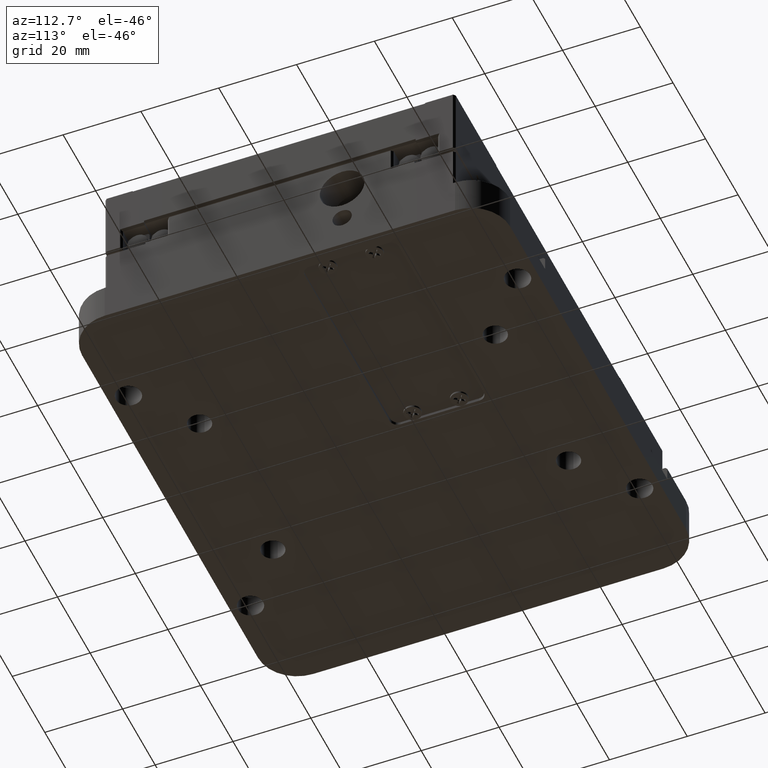
[diagram: clean part render]
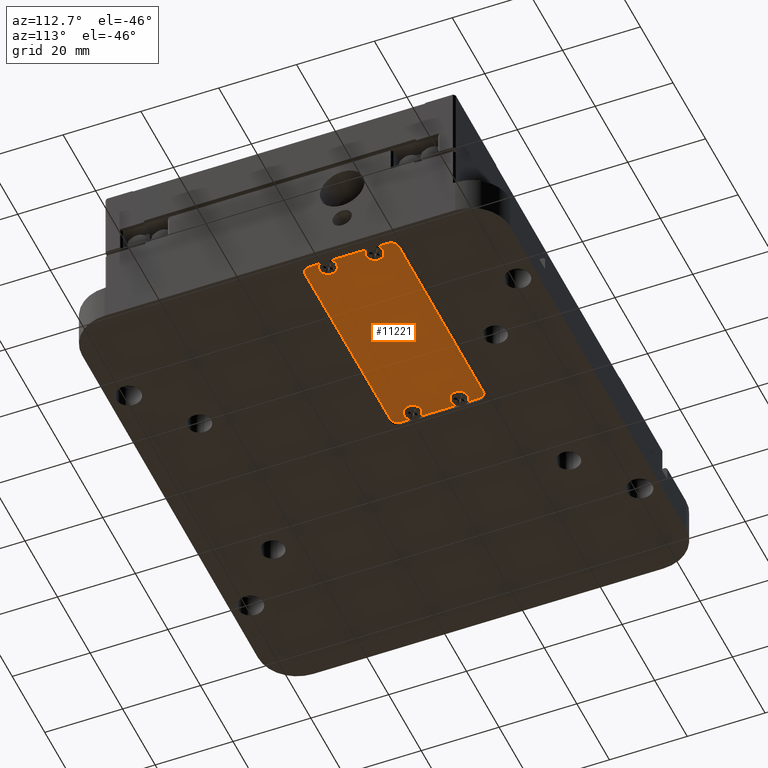
[diagram: same view with one face highlighted and labeled with its STEP entity id]
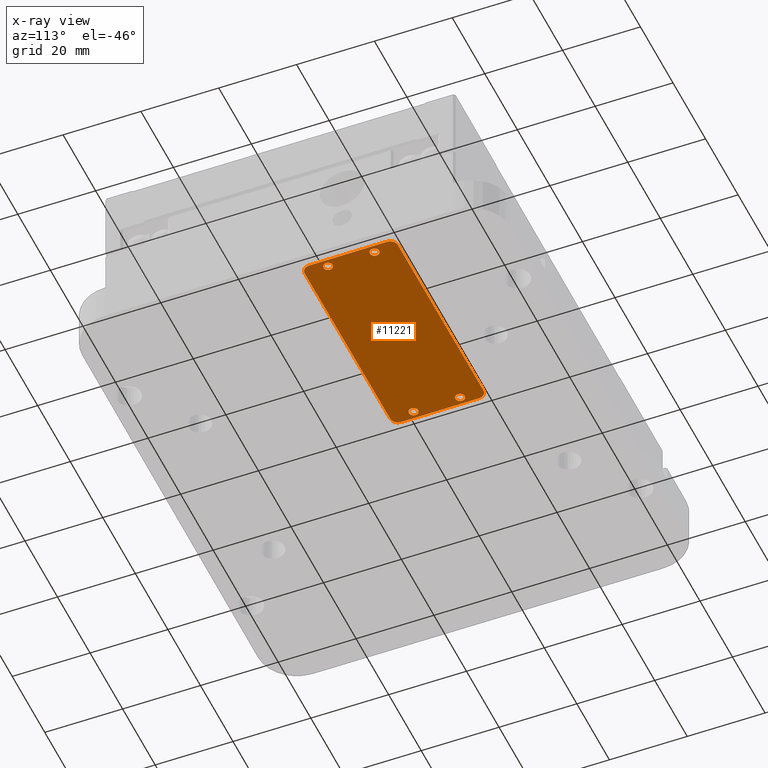
[diagram: x-ray of the same camera — body ghosted, the highlighted face saturated]
A machine part, auxiliary view. The second image highlights one B-rep face of the part: STEP entity #11221.
The next image is the same camera in x-ray: the body ghosted, the highlighted face saturated — about 0% of this face is hidden behind the body in this view.
In plain terms, the highlighted planar face has unit normal (-0, 0, 1).
Its self-contained STEP definition (entity closure, byte-faithful):
#1036 = CARTESIAN_POINT ( 'NONE',  ( 100.9756805584887189, -3.726752283022190415, 70.30000005662441254 ) ) ;
#1448 = ORIENTED_EDGE ( 'NONE', *, *, #16701, .F. ) ;
#2327 = CARTESIAN_POINT ( 'NONE',  ( 153.0693705983418624, 18.05047109443593101, 70.30000005662441254 ) ) ;
#3369 = VERTEX_POINT ( 'NONE', #7717 ) ;
#4797 = ORIENTED_EDGE ( 'NONE', *, *, #71366, .F. ) ;
#5424 = CIRCLE ( 'NONE', #55949, 2.000000000000003997 ) ;
#5624 = FACE_OUTER_BOUND ( 'NONE', #43337, .T. ) ;
#6072 = FACE_BOUND ( 'NONE', #46605, .T. ) ;
#6077 = CARTESIAN_POINT ( 'NONE',  ( 155.0607916969161977, 16.04192883494698307, 70.30000005662441254 ) ) ;
#6260 = ORIENTED_EDGE ( 'NONE', *, *, #34905, .F. ) ;
#6369 = VERTEX_POINT ( 'NONE', #6077 ) ;
#6512 = CARTESIAN_POINT ( 'NONE',  ( 102.1927907268223095, 0.2680747267667119016, 70.30000005662441254 ) ) ;
#6826 = CARTESIAN_POINT ( 'NONE',  ( 153.0608100178845348, 16.05048941540428942, 70.30000005662441254 ) ) ;
#7717 = CARTESIAN_POINT ( 'NONE',  ( 99.06130468403014788, 16.28162508775155359, 70.30000005662441254 ) ) ;
#7725 = CARTESIAN_POINT ( 'NONE',  ( 153.0436888569699363, 12.05052605734100268, 70.30000005662441254 ) ) ;
#7923 = EDGE_CURVE ( 'NONE', #50842, #3369, #82482, .T. ) ;
#9352 = DIRECTION ( 'NONE',  ( -0.004280290228653059990, -0.9999908395158220165, -7.715931078334189329E-20 ) ) ;
#9675 = VECTOR ( 'NONE', #57938, 1000.000000000000000 ) ;
#9941 = AXIS2_PLACEMENT_3D ( 'NONE', #7725, #62847, #41640 ) ;
#11064 = DIRECTION ( 'NONE',  ( 0.9999908395158220165, -0.004280290228653059990, 2.081653871151223996E-17 ) ) ;
#11221 = ADVANCED_FACE ( 'NONE', ( #5624, #59845, #11962, #33196, #6072 ), #32743, .F. ) ;
#11383 = AXIS2_PLACEMENT_3D ( 'NONE', #23527, #56957, #58295 ) ;
#11803 = CIRCLE ( 'NONE', #19039, 1.199999999999993960 ) ;
#11962 = FACE_BOUND ( 'NONE', #33889, .T. ) ;
#12778 = CARTESIAN_POINT ( 'NONE',  ( 98.97569887945708444, -3.718191702564885848, 70.30000005662441254 ) ) ;
#13294 = EDGE_CURVE ( 'NONE', #48079, #48079, #11803, .T. ) ;
#13725 = VERTEX_POINT ( 'NONE', #70471 ) ;
#14297 = CIRCLE ( 'NONE', #9941, 1.199999999999980194 ) ;
#15436 = DIRECTION ( 'NONE',  ( -0.9999908395158220165, 0.004280290228653059990, -2.081653871151223996E-17 ) ) ;
#15956 = LINE ( 'NONE', #36745, #9675 ) ;
#16701 = EDGE_CURVE ( 'NONE', #18148, #18148, #76249, .T. ) ;
#17007 = DIRECTION ( 'NONE',  ( 2.081667828618272760E-17, -1.194222327456772485E-20, -1.000000000000000000 ) ) ;
#17603 = ORIENTED_EDGE ( 'NONE', *, *, #32467, .F. ) ;
#18148 = VERTEX_POINT ( 'NONE', #31259 ) ;
#18315 = VERTEX_POINT ( 'NONE', #86563 ) ;
#18331 = DIRECTION ( 'NONE',  ( 0.9999908395158221275, -0.004280290228652210843, 0.000000000000000000 ) ) ;
#19039 = AXIS2_PLACEMENT_3D ( 'NONE', #30577, #17007, #54445 ) ;
#23527 = CARTESIAN_POINT ( 'NONE',  ( 152.9752042133114855, -3.949327374912150468, 70.30000005662441254 ) ) ;
#24471 = CIRCLE ( 'NONE', #33162, 2.000000000000003997 ) ;
#25122 = DIRECTION ( 'NONE',  ( 2.081667828618272760E-17, -1.194222327456772485E-20, -1.000000000000000000 ) ) ;
#26237 = EDGE_CURVE ( 'NONE', #65422, #65422, #14297, .T. ) ;
#27470 = CARTESIAN_POINT ( 'NONE',  ( 152.9666436328541579, -5.949309053943792058, 70.30000005662441254 ) ) ;
#27634 = DIRECTION ( 'NONE',  ( -2.081667828618272760E-17, 1.194222327456772485E-20, 1.000000000000000000 ) ) ;
#28091 = ORIENTED_EDGE ( 'NONE', *, *, #88584, .F. ) ;
#28918 = CARTESIAN_POINT ( 'NONE',  ( 101.0698469435190816, 18.27304618632589239, 70.30000005662441254 ) ) ;
#28976 = VERTEX_POINT ( 'NONE', #12778 ) ;
#29045 = EDGE_CURVE ( 'NONE', #28976, #33956, #24471, .T. ) ;
#29447 = LINE ( 'NONE', #2327, #77494 ) ;
#30577 = CARTESIAN_POINT ( 'NONE',  ( 100.9928017194033316, 0.2732110750410954858, 70.30000005662441254 ) ) ;
#31259 = CARTESIAN_POINT ( 'NONE',  ( 102.2441542095661617, 12.26796480095657849, 70.30000005662441254 ) ) ;
#32467 = EDGE_CURVE ( 'NONE', #6369, #13725, #5424, .T. ) ;
#32743 = PLANE ( 'NONE',  #72988 ) ;
#32939 = EDGE_LOOP ( 'NONE', ( #55267 ) ) ;
#33162 = AXIS2_PLACEMENT_3D ( 'NONE', #1036, #63373, #34035 ) ;
#33196 = FACE_BOUND ( 'NONE', #32939, .T. ) ;
#33889 = EDGE_LOOP ( 'NONE', ( #39172 ) ) ;
#33956 = VERTEX_POINT ( 'NONE', #37820 ) ;
#34035 = DIRECTION ( 'NONE',  ( -0.9999908395158221275, 0.004280290228652252477, 0.000000000000000000 ) ) ;
#34405 = DIRECTION ( 'NONE',  ( -0.9999908395158221275, 0.004280290228652469317, 0.000000000000000000 ) ) ;
#34659 = CARTESIAN_POINT ( 'NONE',  ( 152.9923253742260840, 0.05063598315113715387, 70.30000005662441254 ) ) ;
#34905 = EDGE_CURVE ( 'NONE', #3369, #28976, #64046, .T. ) ;
#34960 = ORIENTED_EDGE ( 'NONE', *, *, #7923, .F. ) ;
#35351 = CARTESIAN_POINT ( 'NONE',  ( 101.0612863630617824, 16.27306450729424725, 70.30000005662441254 ) ) ;
#36745 = CARTESIAN_POINT ( 'NONE',  ( 154.9751858923430916, -3.957887955369455479, 70.30000005662441254 ) ) ;
#37820 = CARTESIAN_POINT ( 'NONE',  ( 100.9671199780314339, -5.726733962053835114, 70.30000005662441254 ) ) ;
#39172 = ORIENTED_EDGE ( 'NONE', *, *, #66930, .F. ) ;
#39541 = DIRECTION ( 'NONE',  ( -2.081667828618273068E-17, 1.194222327456771281E-20, 1.000000000000000000 ) ) ;
#41640 = DIRECTION ( 'NONE',  ( 0.9999908395158221275, -0.004280290228652259416, 0.000000000000000000 ) ) ;
#43337 = EDGE_LOOP ( 'NONE', ( #52377, #88606, #6260, #34960, #4797, #17603, #28091, #60493 ) ) ;
#46605 = EDGE_LOOP ( 'NONE', ( #1448 ) ) ;
#46833 = DIRECTION ( 'NONE',  ( 2.081667828618272760E-17, -1.194222327456772485E-20, -1.000000000000000000 ) ) ;
#48079 = VERTEX_POINT ( 'NONE', #6512 ) ;
#49146 = EDGE_CURVE ( 'NONE', #33956, #62370, #88200, .T. ) ;
#50396 = ORIENTED_EDGE ( 'NONE', *, *, #26237, .F. ) ;
#50842 = VERTEX_POINT ( 'NONE', #28918 ) ;
#51757 = CIRCLE ( 'NONE', #11383, 2.000000000000003997 ) ;
#52377 = ORIENTED_EDGE ( 'NONE', *, *, #49146, .F. ) ;
#52686 = VECTOR ( 'NONE', #74195, 1000.000000000000000 ) ;
#54445 = DIRECTION ( 'NONE',  ( 0.9999908395158221275, -0.004280290228653023561, 0.000000000000000000 ) ) ;
#55267 = ORIENTED_EDGE ( 'NONE', *, *, #13294, .F. ) ;
#55949 = AXIS2_PLACEMENT_3D ( 'NONE', #6826, #27634, #34405 ) ;
#56817 = CARTESIAN_POINT ( 'NONE',  ( 98.97569887945708444, -3.718191702564885848, 70.30000005662441254 ) ) ;
#56957 = DIRECTION ( 'NONE',  ( -2.081667828618272760E-17, 1.194222327456772485E-20, 1.000000000000000000 ) ) ;
#57938 = DIRECTION ( 'NONE',  ( 0.004280290228653059990, 0.9999908395158220165, 7.715931078334189329E-20 ) ) ;
#58295 = DIRECTION ( 'NONE',  ( -0.9999908395158221275, 0.004280290228652902998, 0.000000000000000000 ) ) ;
#59845 = FACE_BOUND ( 'NONE', #64690, .T. ) ;
#60493 = ORIENTED_EDGE ( 'NONE', *, *, #60537, .F. ) ;
#60537 = EDGE_CURVE ( 'NONE', #62370, #71786, #51757, .T. ) ;
#62370 = VERTEX_POINT ( 'NONE', #27470 ) ;
#62847 = DIRECTION ( 'NONE',  ( 2.081667828618272760E-17, -1.194222327456772485E-20, -1.000000000000000000 ) ) ;
#63373 = DIRECTION ( 'NONE',  ( -2.081667828618272760E-17, 1.194222327456772485E-20, 1.000000000000000000 ) ) ;
#64046 = LINE ( 'NONE', #56817, #89437 ) ;
#64075 = AXIS2_PLACEMENT_3D ( 'NONE', #34659, #46833, #74393 ) ;
#64690 = EDGE_LOOP ( 'NONE', ( #50396 ) ) ;
#65422 = VERTEX_POINT ( 'NONE', #72202 ) ;
#66223 = CARTESIAN_POINT ( 'NONE',  ( 101.0441652021471839, 12.27310114923096052, 70.30000005662441254 ) ) ;
#66930 = EDGE_CURVE ( 'NONE', #18315, #18315, #79944, .T. ) ;
#69463 = AXIS2_PLACEMENT_3D ( 'NONE', #35351, #82341, #89137 ) ;
#70471 = CARTESIAN_POINT ( 'NONE',  ( 153.0693705983418624, 18.05047109443593456, 70.30000005662441254 ) ) ;
#71366 = EDGE_CURVE ( 'NONE', #13725, #50842, #29447, .T. ) ;
#71786 = VERTEX_POINT ( 'NONE', #83567 ) ;
#72202 = CARTESIAN_POINT ( 'NONE',  ( 154.2436778643888999, 12.04538970906661888, 70.30000005662441254 ) ) ;
#72988 = AXIS2_PLACEMENT_3D ( 'NONE', #81986, #39541, #11064 ) ;
#73308 = CARTESIAN_POINT ( 'NONE',  ( 152.9666436328541579, -5.949309053943795611, 70.30000005662441254 ) ) ;
#74195 = DIRECTION ( 'NONE',  ( 0.9999908395158220165, -0.004280290228653059990, 2.081653871151223996E-17 ) ) ;
#74393 = DIRECTION ( 'NONE',  ( 0.9999908395158221275, -0.004280290228653106828, 0.000000000000000000 ) ) ;
#76249 = CIRCLE ( 'NONE', #86288, 1.199999999999993960 ) ;
#77494 = VECTOR ( 'NONE', #15436, 1000.000000000000000 ) ;
#79944 = CIRCLE ( 'NONE', #64075, 1.199999999999980194 ) ;
#81986 = CARTESIAN_POINT ( 'NONE',  ( 152.9752042133114855, -3.949327374912150468, 70.30000005662441254 ) ) ;
#82341 = DIRECTION ( 'NONE',  ( -2.081667828618272760E-17, 1.194222327456772485E-20, 1.000000000000000000 ) ) ;
#82482 = CIRCLE ( 'NONE', #69463, 2.000000000000003997 ) ;
#83567 = CARTESIAN_POINT ( 'NONE',  ( 154.9751858923430916, -3.957887955369455479, 70.30000005662441254 ) ) ;
#86288 = AXIS2_PLACEMENT_3D ( 'NONE', #66223, #25122, #18331 ) ;
#86563 = CARTESIAN_POINT ( 'NONE',  ( 154.1923143816450477, 0.04549963487675351415, 70.30000005662441254 ) ) ;
#88200 = LINE ( 'NONE', #73308, #52686 ) ;
#88584 = EDGE_CURVE ( 'NONE', #71786, #6369, #15956, .T. ) ;
#88606 = ORIENTED_EDGE ( 'NONE', *, *, #29045, .F. ) ;
#89137 = DIRECTION ( 'NONE',  ( -0.9999908395158221275, 0.004280290228652469317, 0.000000000000000000 ) ) ;
#89437 = VECTOR ( 'NONE', #9352, 1000.000000000000000 ) ;